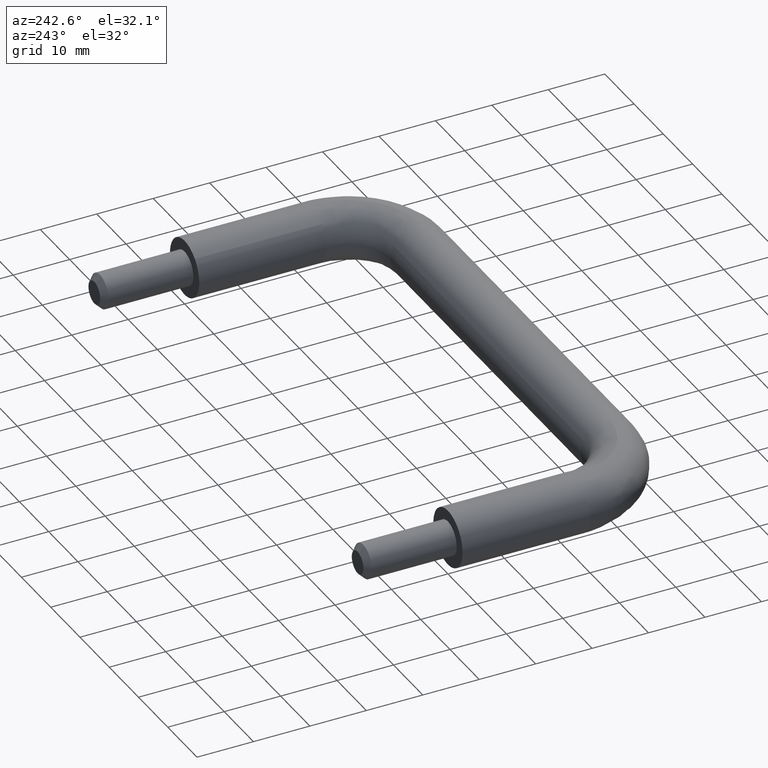
[diagram: clean part render]
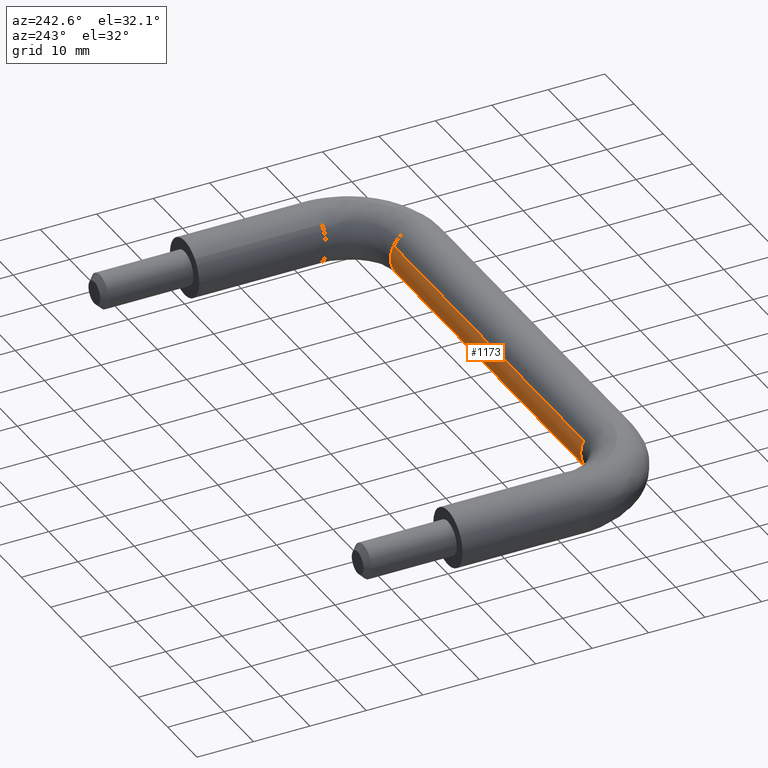
[diagram: same view with one face highlighted and labeled with its STEP entity id]
A machine part, auxiliary view. The second image highlights one B-rep face of the part: STEP entity #1173.
In plain terms, the highlighted face is a freeform B-spline surface patch.
Its self-contained STEP definition (entity closure, byte-faithful):
#954=CARTESIAN_POINT('',(77.500000000000028,-30.521972536830301,2.224245948427894));
#955=VERTEX_POINT('',#954);
#973=CARTESIAN_POINT('',(12.499999999953680,-30.521972536862169,2.224245948412617));
#974=VERTEX_POINT('',#973);
#975=CARTESIAN_POINT('',(12.499999999953680,-30.521972536862169,2.224245948412617));
#976=CARTESIAN_POINT('',(77.500000000000028,-30.521972536830301,2.224245948427894));
#977=QUASI_UNIFORM_CURVE('',1,(#975,#976),.UNSPECIFIED.,.F.,.U.);
#978=EDGE_CURVE('',#974,#955,#977,.T.);
#1027=CARTESIAN_POINT('',(12.500000000000000,-31.558228069350712,-3.626872754508066));
#1028=VERTEX_POINT('',#1027);
#1044=CARTESIAN_POINT('',(77.500000000186986,-31.558227959531859,-3.626872650146366));
#1045=VERTEX_POINT('',#1044);
#1046=CARTESIAN_POINT('',(12.500000000000000,-31.558228069350712,-3.626872754508066));
#1047=CARTESIAN_POINT('',(77.500000000186986,-31.558227959531859,-3.626872650146366));
#1048=QUASI_UNIFORM_CURVE('',1,(#1046,#1047),.UNSPECIFIED.,.F.,.U.);
#1049=EDGE_CURVE('',#1028,#1045,#1048,.T.);
#1099=CARTESIAN_POINT('',(10.874999999495580,-31.558227121531232,-3.626871855061437));
#1100=CARTESIAN_POINT('',(10.874999999495579,-28.878708249008774,-1.084103389193821));
#1101=CARTESIAN_POINT('',(10.874999999495580,-30.521972536820851,2.224245948408881));
#1102=CARTESIAN_POINT('',(79.165625002282297,-31.558227121531232,-3.626871855061437));
#1103=CARTESIAN_POINT('',(79.165625002282297,-28.878708249008760,-1.084103389193821));
#1104=CARTESIAN_POINT('',(79.165625002282297,-30.521972536820840,2.224245948408881));
#1112=(BOUNDED_SURFACE()B_SPLINE_SURFACE(2,1,((#1099,#1102),(#1100,#1103),(#1101,#1104)),.UNSPECIFIED.,.F.,.F.,.U.)B_SPLINE_SURFACE_WITH_KNOTS((3,3),(2,2),(0.0,6.582243619433232),(0.0,68.290625002786726),.UNSPECIFIED.)GEOMETRIC_REPRESENTATION_ITEM()RATIONAL_B_SPLINE_SURFACE(((1.0,1.0),(0.765685424949238,0.765685424949238),(0.906274169979695,0.906274169979695)))REPRESENTATION_ITEM('')SURFACE());
#1113=CARTESIAN_POINT('',(77.500000000000000,-30.0,0.0));
#1114=VERTEX_POINT('',#1113);
#1115=CARTESIAN_POINT('',(77.500000000000000,-30.0,0.0));
#1116=CARTESIAN_POINT('',(77.500000000000000,-30.000000000000011,1.173369647372439));
#1117=CARTESIAN_POINT('',(77.500000000000028,-30.521972536830301,2.224245948427894));
#1125=(BOUNDED_CURVE()B_SPLINE_CURVE(2,(#1115,#1116,#1117),.UNSPECIFIED.,.F.,.U.)B_SPLINE_CURVE_WITH_KNOTS((3,3),(0.500000000000000,0.575619190623715),.UNSPECIFIED.)CURVE()GEOMETRIC_REPRESENTATION_ITEM()RATIONAL_B_SPLINE_CURVE((1.0,0.911406607416609,0.876408099967338))REPRESENTATION_ITEM(''));
#1126=EDGE_CURVE('',#1114,#955,#1125,.T.);
#1127=ORIENTED_EDGE('',*,*,#1126,.F.);
#1128=CARTESIAN_POINT('',(77.500000000186972,-31.558227959531862,-3.626872650146367));
#1129=CARTESIAN_POINT('',(77.499999999999986,-30.000000000000007,-2.148170213892603));
#1130=CARTESIAN_POINT('',(77.500000000000000,-30.0,0.0));
#1138=(BOUNDED_CURVE()B_SPLINE_CURVE(2,(#1128,#1129,#1130),.UNSPECIFIED.,.F.,.U.)B_SPLINE_CURVE_WITH_KNOTS((3,3),(0.371049491799913,0.500000000000000),.UNSPECIFIED.)CURVE()GEOMETRIC_REPRESENTATION_ITEM()RATIONAL_B_SPLINE_CURVE((0.853699663950849,0.848925082342584,1.0))REPRESENTATION_ITEM(''));
#1139=EDGE_CURVE('',#1045,#1114,#1138,.T.);
#1140=ORIENTED_EDGE('',*,*,#1139,.F.);
#1141=ORIENTED_EDGE('',*,*,#1049,.F.);
#1142=CARTESIAN_POINT('',(12.500000000000000,-30.0,0.0));
#1143=VERTEX_POINT('',#1142);
#1144=CARTESIAN_POINT('',(12.500000000000007,-31.558228069350704,-3.626872754508066));
#1145=CARTESIAN_POINT('',(12.500000000000000,-30.000000000000007,-2.148170303760609));
#1146=CARTESIAN_POINT('',(12.500000000000000,-30.0,0.0));
#1154=(BOUNDED_CURVE()B_SPLINE_CURVE(2,(#1144,#1145,#1146),.UNSPECIFIED.,.F.,.U.)B_SPLINE_CURVE_WITH_KNOTS((3,3),(0.371049487220299,0.500000000000000),.UNSPECIFIED.)CURVE()GEOMETRIC_REPRESENTATION_ITEM()RATIONAL_B_SPLINE_CURVE((0.853699664289983,0.848925076977233,1.0))REPRESENTATION_ITEM(''));
#1155=EDGE_CURVE('',#1028,#1143,#1154,.T.);
#1156=ORIENTED_EDGE('',*,*,#1155,.T.);
#1157=CARTESIAN_POINT('',(12.500000000000000,-30.0,0.0));
#1158=CARTESIAN_POINT('',(12.500000000000004,-30.000000000000004,1.173369647353840));
#1159=CARTESIAN_POINT('',(12.499999999953683,-30.521972536862169,2.224245948412617));
#1167=(BOUNDED_CURVE()B_SPLINE_CURVE(2,(#1157,#1158,#1159),.UNSPECIFIED.,.F.,.U.)B_SPLINE_CURVE_WITH_KNOTS((3,3),(0.500000000000000,0.575619190622622),.UNSPECIFIED.)CURVE()GEOMETRIC_REPRESENTATION_ITEM()RATIONAL_B_SPLINE_CURVE((1.0,0.911406607417888,0.876408099968349))REPRESENTATION_ITEM(''));
#1168=EDGE_CURVE('',#1143,#974,#1167,.T.);
#1169=ORIENTED_EDGE('',*,*,#1168,.T.);
#1170=ORIENTED_EDGE('',*,*,#978,.T.);
#1171=EDGE_LOOP('',(#1127,#1140,#1141,#1156,#1169,#1170));
#1172=FACE_OUTER_BOUND('',#1171,.T.);
#1173=ADVANCED_FACE('',(#1172),#1112,.T.);